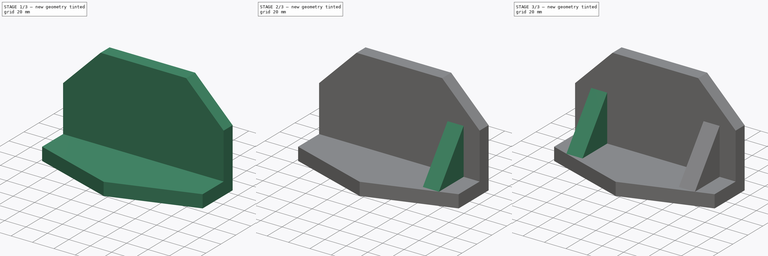
[diagram: build sequence overview — one tinted view per stage of 3, left to right]
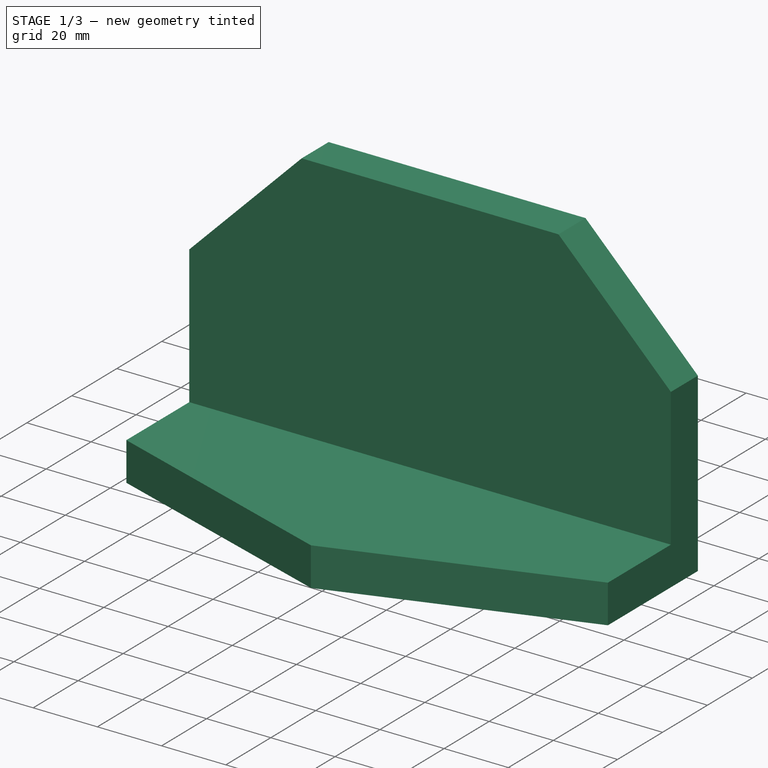
[diagram: stage 1 of 3 — iso view after this stage's code; geometry added in this stage tinted green]
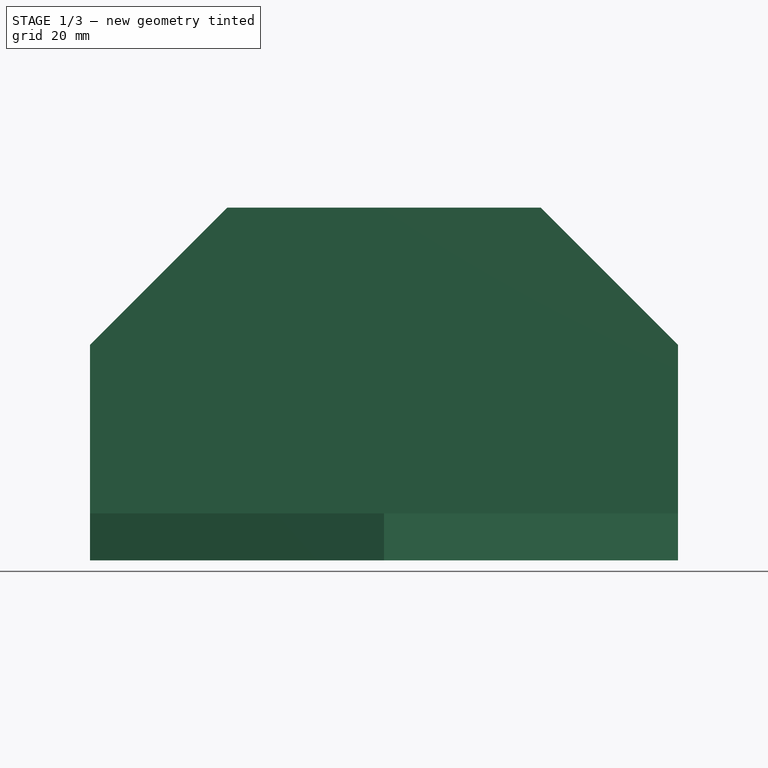
[diagram: stage 1 of 3 — front view after this stage's code; geometry added in this stage tinted green]
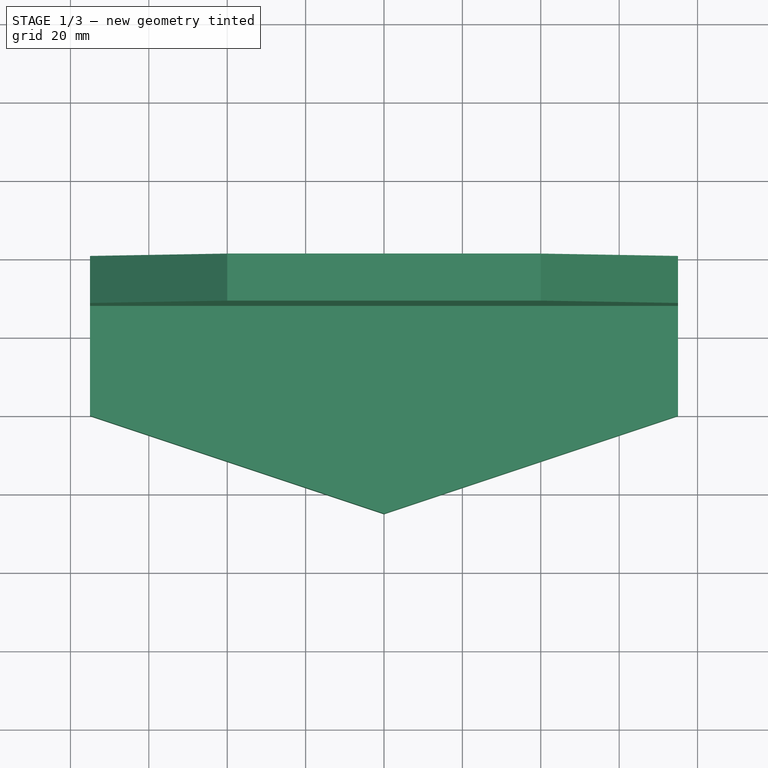
[diagram: stage 1 of 3 — top view after this stage's code; geometry added in this stage tinted green]
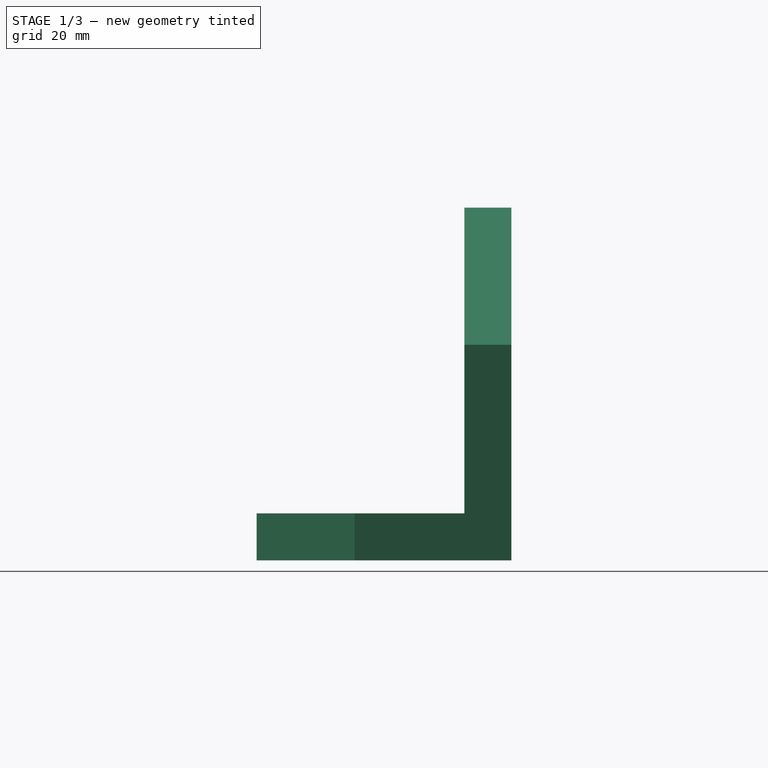
[diagram: stage 1 of 3 — right view after this stage's code; geometry added in this stage tinted green]
FCSTD DOCUMENT  (FreeCAD 0.16R)
Label: ejer1 final
License: All rights reserved
LicenseURL: http://en.wikipedia.org/wiki/All_rights_reserved
objects: Sketcher::SketchObject×6, PartDesign::Pad×4, PartDesign::Pocket×2
note: 18 computed .brp shape members not serialized (recipe doc carries the construction recipe); baked Part::Feature solids carry a one-line shape summary decoded from their .brp

FEATURE [Sketcher::SketchObject] Sketch
  sketch-geometry (5):
    g0: LineSegment StartX=-75 StartY=0 StartZ=0 EndX=75 EndY=0 EndZ=0
    g1: LineSegment StartX=75 StartY=0 StartZ=0 EndX=75 EndY=-40 EndZ=0
    g2: LineSegment StartX=75 StartY=-40 StartZ=0 EndX=0 EndY=-65 EndZ=0
    g3: LineSegment StartX=0 StartY=-65 StartZ=0 EndX=-75 EndY=-40 EndZ=0
    g4: LineSegment StartX=-75 StartY=-40 StartZ=0 EndX=-75 EndY=0 EndZ=0
  constraints (15):
    c: Horizontal(g0)
    c: Coincident(g0,g1)
    c: Vertical(g1)
    c: Coincident(g1,g2)
    c: Coincident(g2,g3)
    c: Coincident(g3,g4)
    c: Coincident(g4,g0)
    c: Vertical(g4)
    c: DistanceY(g1,g1) = 40
    c: DistanceY(g4,g4) = 40
    c: DistanceX(g2,g1) = 75
    c: DistanceX(g3,g2) = 75
    c: PointOnObject(g2,g-2)
    c: PointOnObject(g-1,g0)
    c: DistanceY(g2,g0) = 65
FEATURE [PartDesign::Pad] Pad
  Length = 12
  Length2 = 100
  Sketch = -> Sketch
  Type = 0
FEATURE [Sketcher::SketchObject] Sketch001
  ExternalGeometry = -> [Pad]
  Placement = pos=(0,0,0) rot=(0,0.707107,0.707107;3.14159rad)
  Support = -> Pad [Face1]
  sketch-geometry (6):
    g0: LineSegment StartX=75 StartY=0 StartZ=0 EndX=-75 EndY=0 EndZ=0
    g1: LineSegment StartX=-75 StartY=0 StartZ=0 EndX=-75 EndY=55 EndZ=0
    g2: LineSegment StartX=-75 StartY=55 StartZ=0 EndX=-40 EndY=90 EndZ=0
    g3: LineSegment StartX=-40 StartY=90 StartZ=0 EndX=40 EndY=90 EndZ=0
    g4: LineSegment StartX=40 StartY=90 StartZ=0 EndX=75 EndY=55 EndZ=0
    g5: LineSegment StartX=75 StartY=55 StartZ=0 EndX=75 EndY=0 EndZ=0
  constraints (16):
    c: Coincident(g0,g1)
    c: Coincident(g1,g2)
    c: Coincident(g2,g3)
    c: Coincident(g3,g4)
    c: Coincident(g4,g5)
    c: Coincident(g5,g0)
    c: Coincident(g0,g-3)
    c: Vertical(g1)
    c: Vertical(g5)
    c: Coincident(g0,g-3)
    c: DistanceY(g1,g1) = 55
    c: DistanceY(g5,g5) = 55
    c: DistanceY(g0,g3) = 90
    c: DistanceY(g0,g2) = 90
    c: DistanceX(g3,g4) = 35
    c: DistanceX(g1,g2) = 35
FEATURE [PartDesign::Pad] Pad001
  Length = 12
  Length2 = 100
  Reversed = true
  Sketch = -> Sketch001
  Type = 0
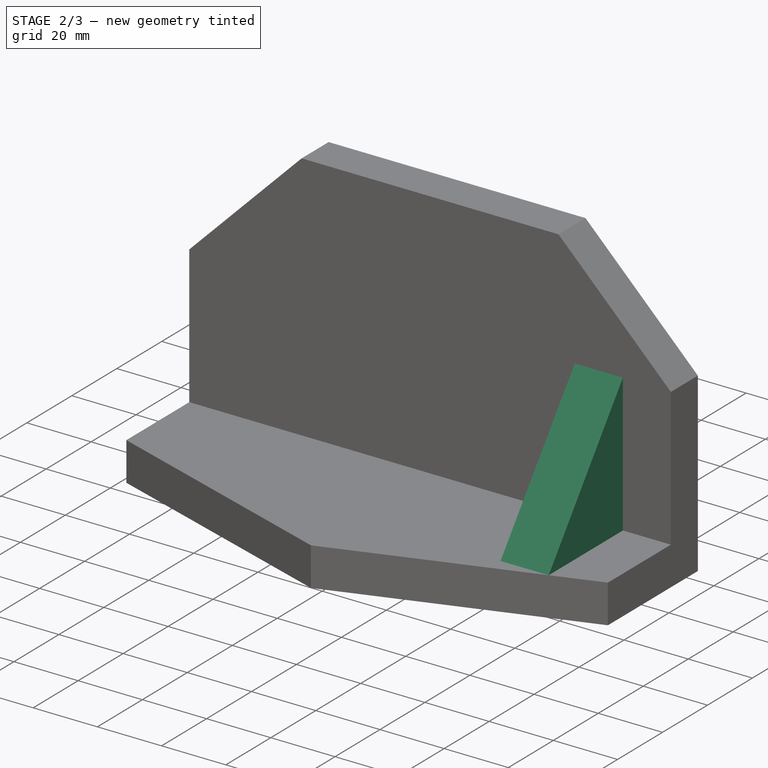
[diagram: stage 2 of 3 — iso view after this stage's code; geometry added in this stage tinted green]
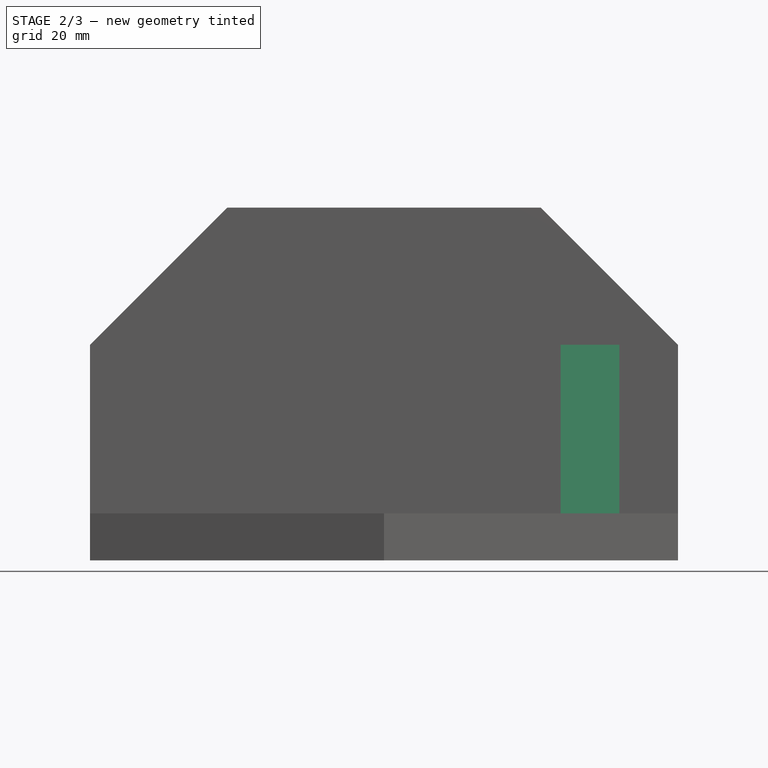
[diagram: stage 2 of 3 — front view after this stage's code; geometry added in this stage tinted green]
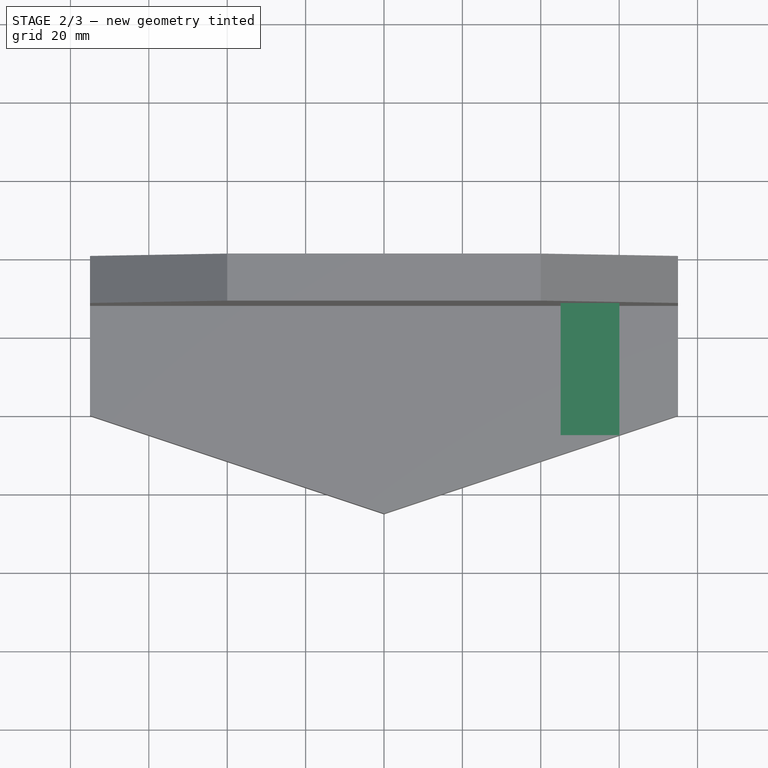
[diagram: stage 2 of 3 — top view after this stage's code; geometry added in this stage tinted green]
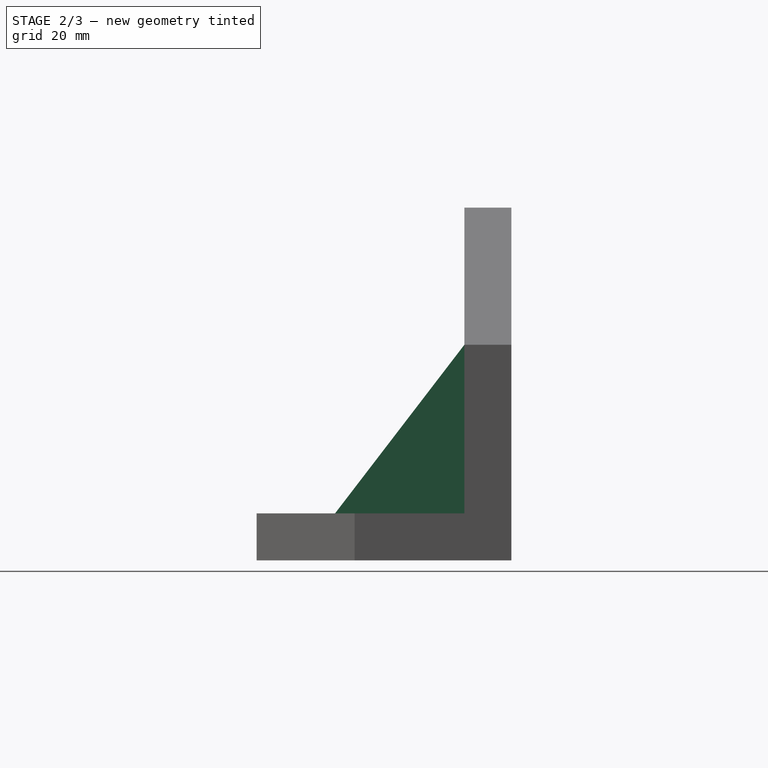
[diagram: stage 2 of 3 — right view after this stage's code; geometry added in this stage tinted green]
FEATURE [Sketcher::SketchObject] Sketch002
  ExternalGeometry = -> [Pad001]
  Placement = pos=(0,0,12) rot=(0,0,1;0rad)
  Support = -> Pad001 [Face3]
  sketch-geometry (5):
    g0: LineSegment [constr] StartX=75.0509 StartY=-40 StartZ=0 EndX=60.0509 EndY=-40 EndZ=0
    g1: LineSegment StartX=60.0509 StartY=-44.983 StartZ=0 EndX=45.0509 EndY=-44.983 EndZ=0
    g2: LineSegment StartX=45.0509 StartY=-44.983 StartZ=0 EndX=45.0509 EndY=-12 EndZ=0
    g3: LineSegment StartX=45.0509 StartY=-12 StartZ=0 EndX=60.0509 EndY=-12 EndZ=0
    g4: LineSegment StartX=60.0509 StartY=-12 StartZ=0 EndX=60.0509 EndY=-44.983 EndZ=0
  constraints (14):
    c: Horizontal(g0)
    c: DistanceX(g0,g0) = 15
    c: Coincident(g1,g2)
    c: Coincident(g2,g3)
    c: Coincident(g3,g4)
    c: Coincident(g4,g1)
    c: Horizontal(g1)
    c: Horizontal(g3)
    c: Vertical(g2)
    c: Vertical(g4)
    c: PointOnObject(g0,g4)
    c: PointOnObject(g1,g-5)
    c: DistanceY(g2,g-1) = 12
    c: DistanceX(g1,g1) = 15
FEATURE [PartDesign::Pad] Pad002
  Length = 43
  Length2 = 100
  Sketch = -> Sketch002
  Type = 0
FEATURE [Sketcher::SketchObject] Sketch003
  ExternalGeometry = -> [Pad002]
  Placement = pos=(60.0509,0,0) rot=(0.57735,0.57735,0.57735;2.0944rad)
  Support = -> Pad002 [Face15]
  sketch-geometry (3):
    g0: LineSegment StartX=-44.983 StartY=12 StartZ=0 EndX=-12 EndY=55 EndZ=0
    g1: LineSegment StartX=-12 StartY=55 StartZ=0 EndX=-44.983 EndY=55 EndZ=0
    g2: LineSegment StartX=-44.983 StartY=55 StartZ=0 EndX=-44.983 EndY=12 EndZ=0
  constraints (7):
    c: Coincident(g0,g1)
    c: Coincident(g1,g2)
    c: Vertical(g2)
    c: Coincident(g-4,g2)
    c: Coincident(g2,g0)
    c: Coincident(g0,g-3)
    c: Coincident(g1,g-4)
FEATURE [PartDesign::Pocket] Pocket
  Length = 5
  Sketch = -> Sketch003
  Type = 1
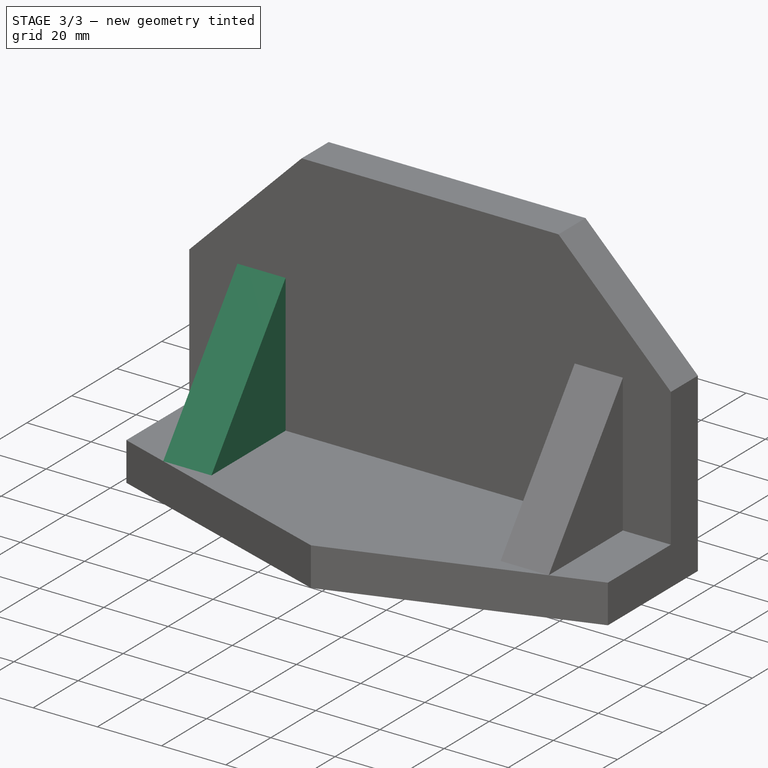
[diagram: stage 3 of 3 — iso view after this stage's code; geometry added in this stage tinted green]
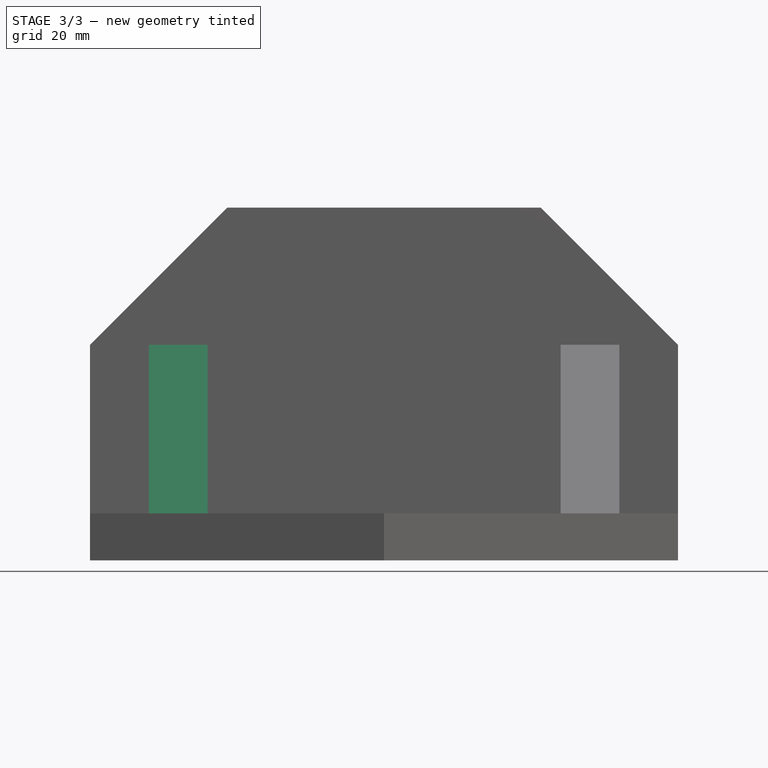
[diagram: stage 3 of 3 — front view after this stage's code; geometry added in this stage tinted green]
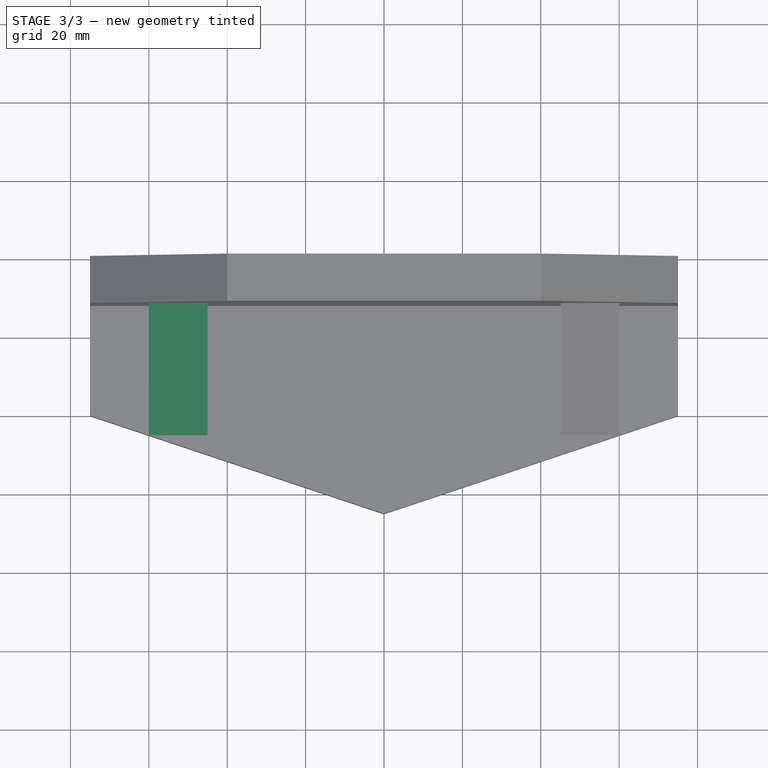
[diagram: stage 3 of 3 — top view after this stage's code; geometry added in this stage tinted green]
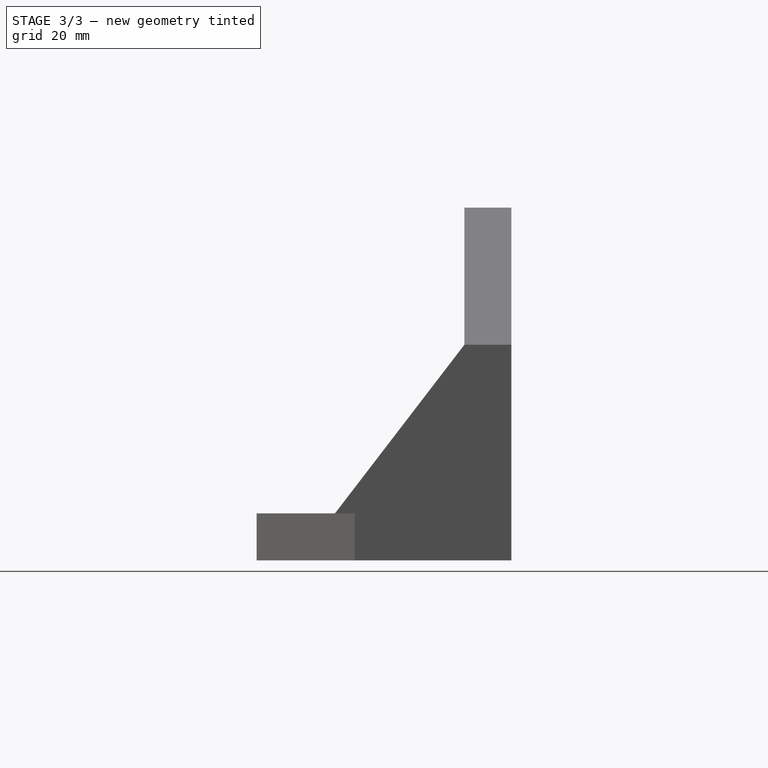
[diagram: stage 3 of 3 — right view after this stage's code; geometry added in this stage tinted green]
FEATURE [Sketcher::SketchObject] Sketch004
  ExternalGeometry = -> [Pocket]
  Placement = pos=(0,0,12) rot=(0,0,1;0rad)
  Support = -> Pocket [Face15]
  sketch-geometry (5):
    g0: LineSegment [constr] StartX=-75 StartY=-40 StartZ=0 EndX=-60 EndY=-40 EndZ=0
    g1: LineSegment StartX=-60 StartY=-45 StartZ=0 EndX=-45 EndY=-45 EndZ=0
    g2: LineSegment StartX=-45 StartY=-45 StartZ=0 EndX=-45 EndY=-12 EndZ=0
    g3: LineSegment StartX=-45 StartY=-12 StartZ=0 EndX=-60 EndY=-12 EndZ=0
    g4: LineSegment StartX=-60 StartY=-12 StartZ=0 EndX=-60 EndY=-45 EndZ=0
  constraints (15):
    c: Coincident(g0,g-3)
    c: Horizontal(g0)
    c: DistanceX(g0,g0) = 15
    c: Coincident(g1,g2)
    c: Coincident(g2,g3)
    c: Coincident(g3,g4)
    c: Coincident(g4,g1)
    c: Horizontal(g1)
    c: Horizontal(g3)
    c: Vertical(g2)
    c: Vertical(g4)
    c: PointOnObject(g0,g4)
    c: PointOnObject(g1,g-4)
    c: DistanceX(g3,g3) = 15
    c: DistanceY(g2,g-1) = 12
FEATURE [PartDesign::Pad] Pad003
  Length = 43
  Length2 = 100
  Sketch = -> Sketch004
  Type = 0
FEATURE [Sketcher::SketchObject] Sketch005
  ExternalGeometry = -> [Pad003]
  Placement = pos=(-60,0,0) rot=(0.57735,-0.57735,-0.57735;2.0944rad)
  Support = -> Pad003 [Face13]
  sketch-geometry (3):
    g0: LineSegment StartX=12 StartY=55 StartZ=0 EndX=45 EndY=55 EndZ=0
    g1: LineSegment StartX=45 StartY=55 StartZ=0 EndX=45 EndY=12 EndZ=0
    g2: LineSegment StartX=45 StartY=12 StartZ=0 EndX=12 EndY=55 EndZ=0
  constraints (6):
    c: Coincident(g0,g1)
    c: Coincident(g1,g2)
    c: Coincident(g2,g0)
    c: Coincident(g0,g-3)
    c: Coincident(g0,g-4)
    c: Coincident(g-4,g1)
FEATURE [PartDesign::Pocket] Pocket001
  Length = 5
  Sketch = -> Sketch005
  Type = 1
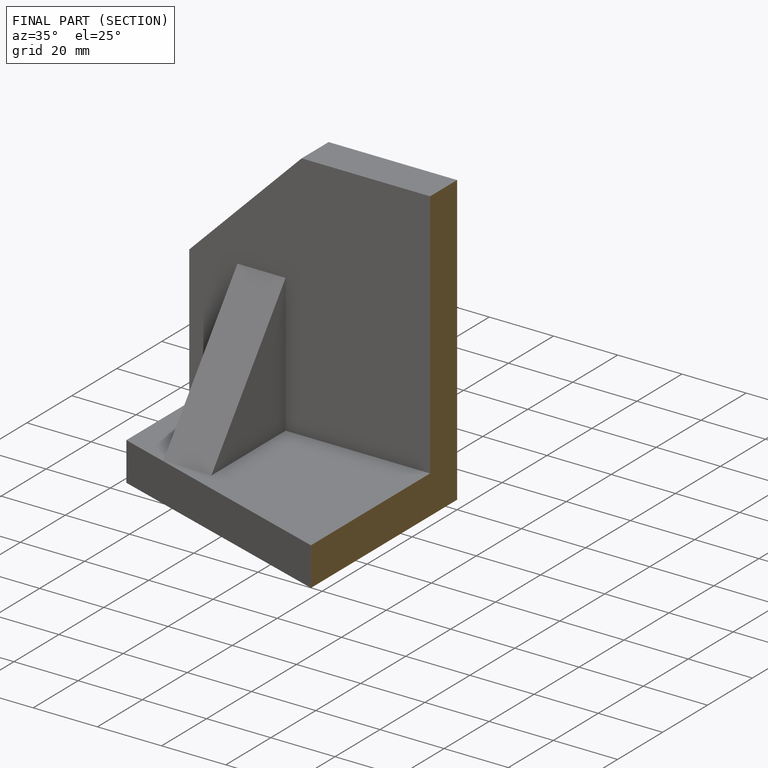
[diagram: finished part — half-section view (interior)]
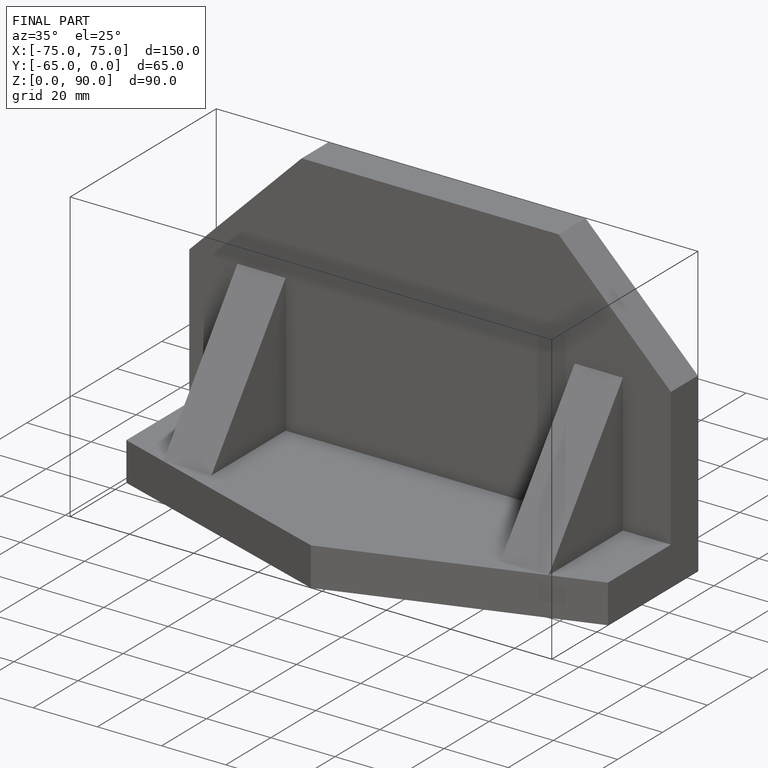
[diagram: finished part — iso view with bounding-box wireframe]
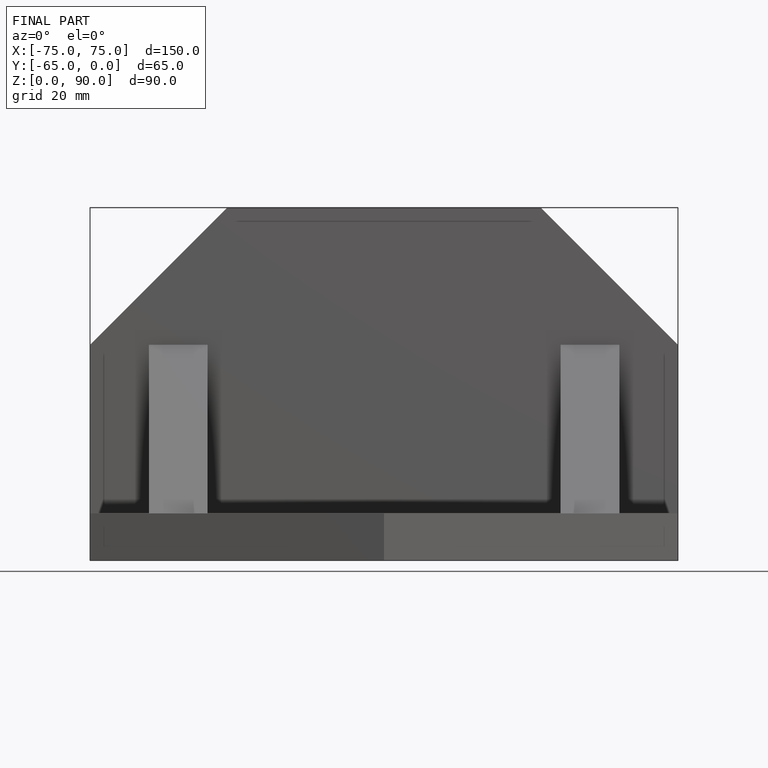
[diagram: finished part — front view with bounding-box wireframe]
